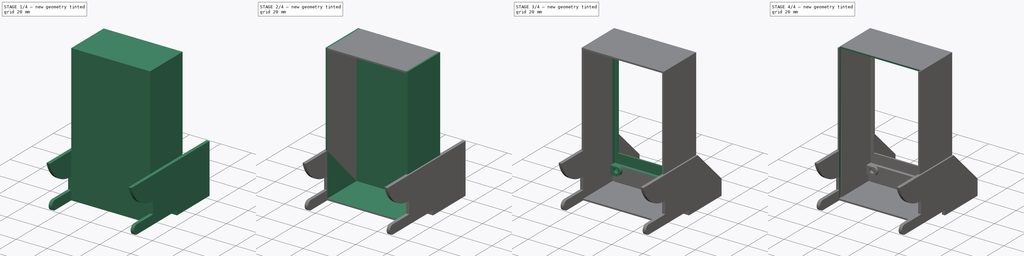
[diagram: build sequence overview — one tinted view per stage of 4, left to right]
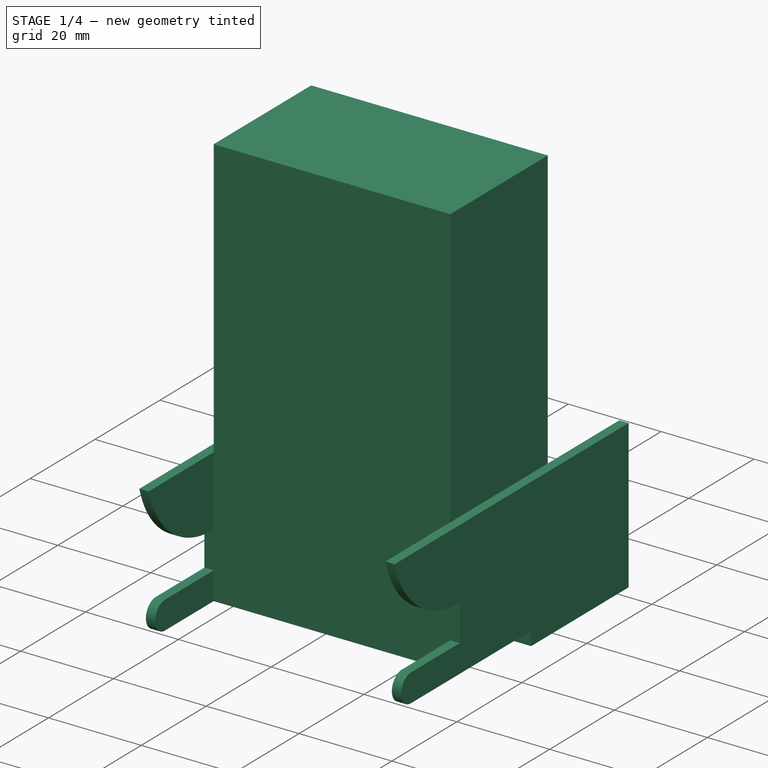
[diagram: stage 1 of 4 — iso view after this stage's code; geometry added in this stage tinted green]
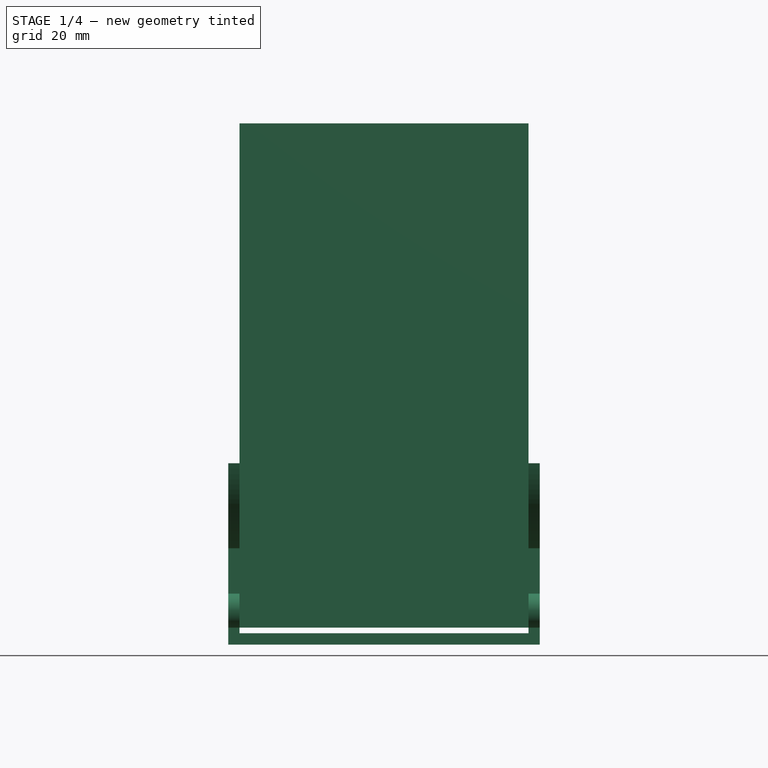
[diagram: stage 1 of 4 — front view after this stage's code; geometry added in this stage tinted green]
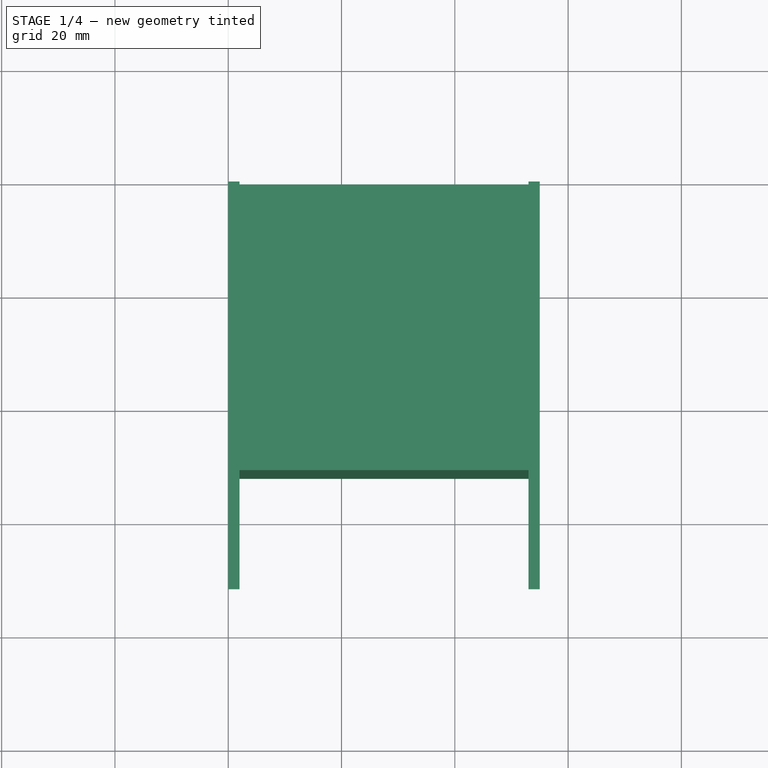
[diagram: stage 1 of 4 — top view after this stage's code; geometry added in this stage tinted green]
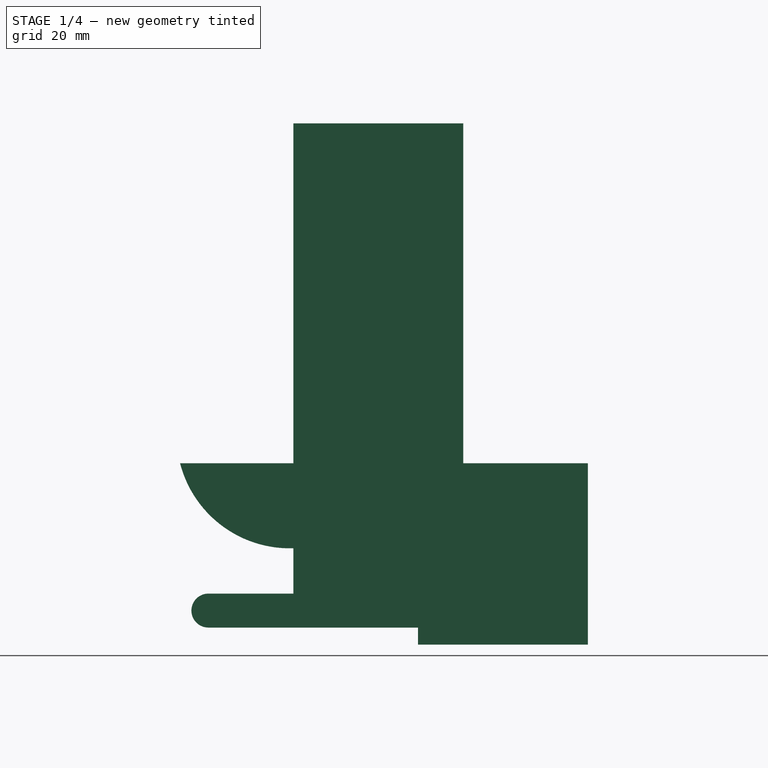
[diagram: stage 1 of 4 — right view after this stage's code; geometry added in this stage tinted green]
FCSTD DOCUMENT  (FreeCAD 0.19R)
Label: screen_case_top
License: All rights reserved
LicenseURL: http://en.wikipedia.org/wiki/All_rights_reserved
objects: Sketcher::SketchObject×10, PartDesign::Pocket×8, PartDesign::Pad×5, PartDesign::Body×1
note: 37 computed .brp shape members not serialized (recipe doc carries the construction recipe); baked Part::Feature solids carry a one-line shape summary decoded from their .brp

FEATURE [Sketcher::SketchObject] Sketch
  FullyConstrained = true
  MapMode = 5
  Placement = pos=(0,0,0) rot=(0.57735,0.57735,0.57735;2.0944rad)
  Support = -> [YZ_Plane]
  sketch-geometry (9):
    g0: LineSegment StartX=0 StartY=0 StartZ=0 EndX=-30 EndY=0 EndZ=0
    g1: LineSegment StartX=-30 StartY=0 StartZ=0 EndX=-30 EndY=3 EndZ=0
    g2: LineSegment StartX=-30 StartY=3 StartZ=0 EndX=-67 EndY=3 EndZ=0
    g3: LineSegment StartX=-67 StartY=9 StartZ=0 EndX=-52 EndY=9 EndZ=0
    g4: LineSegment StartX=-52 StartY=9 StartZ=0 EndX=-52 EndY=17 EndZ=0
    g5: LineSegment StartX=-72 StartY=32 StartZ=0 EndX=0 EndY=32 EndZ=0
    g6: LineSegment StartX=0 StartY=32 StartZ=0 EndX=0 EndY=0 EndZ=0
    g7: ArcOfCircle CenterX=-67 CenterY=6 CenterZ=0 NormalX=0 NormalY=0 NormalZ=1 AngleXU=0 Radius=3 StartAngle=1.5708 EndAngle=4.71239
    g8: ArcOfCircle CenterX=-52.625 CenterY=37 CenterZ=0 NormalX=0 NormalY=0 NormalZ=1 AngleXU=0 Radius=20.0098 StartAngle=3.39415 EndAngle=4.74363
  constraints (28):
    c: Coincident(g-1,g0)
    c: PointOnObject(g0,g-1)
    c: Coincident(g0,g1)
    c: Vertical(g1)
    c: Coincident(g1,g2)
    c: Horizontal(g2)
    c: Horizontal(g3)
    c: Coincident(g3,g4)
    c: Vertical(g4)
    c: PointOnObject(g5,g-2)
    c: Horizontal(g5)
    c: Coincident(g5,g6)
    c: Coincident(g6,g0)
    c: Coincident(g7,g2)
    c: Coincident(g7,g3)
    c: Coincident(g8,g5)
    c: DistanceX(g0,g0) = 30
    c: Diameter(g7) = 6
    c: DistanceY(g1,g1) = 3
    c: DistanceX(g2,g2) = 37
    c: DistanceX(g2,g7) = 0
    c: DistanceX(g3,g7) = 0
    c: DistanceX(g3,g0) = 52
    c: DistanceY(g4,g4) = 8
    c: DistanceY(g4,g5) = 15
    c: Coincident(g8,g4)
    c: DistanceX(g5,g4) = 20
    c: DistanceY(g4,g8) = 20
FEATURE [PartDesign::Pad] Pad
  Direction = (1,1,1)
  Length = 55
  Length2 = 100
  Placement = pos=(0,0,0) rot=(0.57735,0.57735,0.57735;2.0944rad)
  Profile = -> Sketch
  Type = 0
FEATURE [Sketcher::SketchObject] Sketch001
  FullyConstrained = true
  MapMode = 5
  Placement = pos=(-1.24e-14,1.78e-14,32) rot=(0,0,-1;1.5708rad)
  Support = -> [Pad]
  sketch-geometry (4):
    g0: LineSegment StartX=0 StartY=2 StartZ=0 EndX=72 EndY=2 EndZ=0
    g1: LineSegment StartX=72 StartY=2 StartZ=0 EndX=72 EndY=53 EndZ=0
    g2: LineSegment StartX=72 StartY=53 StartZ=0 EndX=0 EndY=53 EndZ=0
    g3: LineSegment StartX=0 StartY=53 StartZ=0 EndX=0 EndY=2 EndZ=0
  constraints (12):
    c: Coincident(g0,g1)
    c: Coincident(g1,g2)
    c: Coincident(g2,g3)
    c: Coincident(g3,g0)
    c: Horizontal(g0)
    c: Horizontal(g2)
    c: Vertical(g1)
    c: Vertical(g3)
    c: PointOnObject(g0,g-2)
    c: DistanceY(g3,g3) = 51
    c: DistanceY(g-1,g0) = 2
    c: DistanceX(g2,g2) = 72
FEATURE [PartDesign::Pocket] Pocket
  BaseFeature = -> Pad
  Length = 30
  Length2 = 100
  Placement = pos=(0,0,0) rot=(0.57735,0.57735,0.57735;2.0944rad)
  Profile = -> Sketch001
  Type = 0
FEATURE [Sketcher::SketchObject] Sketch002
  FullyConstrained = true
  MapMode = 5
  Placement = pos=(53,-1.18e-14,3.82e-14) rot=(0.57735,0.57735,-0.57735;4.18879rad)
  Support = -> [Pocket]
  sketch-geometry (4):
    g0: LineSegment StartX=-52 StartY=-3 StartZ=0 EndX=-22 EndY=-3 EndZ=0
    g1: LineSegment StartX=-22 StartY=-3 StartZ=0 EndX=-22 EndY=-92 EndZ=0
    g2: LineSegment StartX=-22 StartY=-92 StartZ=0 EndX=-52 EndY=-92 EndZ=0
    g3: LineSegment StartX=-52 StartY=-92 StartZ=0 EndX=-52 EndY=-3 EndZ=0
  constraints (12):
    c: Coincident(g0,g1)
    c: Coincident(g1,g2)
    c: Coincident(g2,g3)
    c: Coincident(g3,g0)
    c: Horizontal(g0)
    c: Horizontal(g2)
    c: Vertical(g1)
    c: Vertical(g3)
    c: DistanceY(g0,g-1) = 3
    c: DistanceX(g0,g-1) = 52
    c: DistanceX(g0,g0) = 30
    c: DistanceY(g3,g3) = 89
FEATURE [PartDesign::Pad] Pad001
  BaseFeature = -> Pocket
  Direction = (1,1,1)
  Length = 51
  Length2 = 100
  Placement = pos=(0,0,0) rot=(0.57735,0.57735,0.57735;2.0944rad)
  Profile = -> Sketch002
  Type = 0
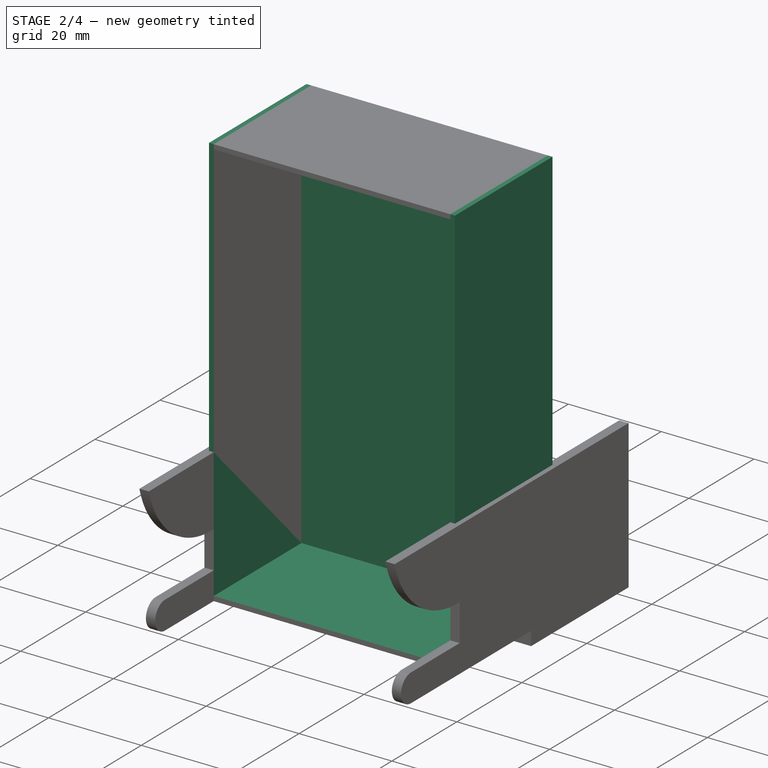
[diagram: stage 2 of 4 — iso view after this stage's code; geometry added in this stage tinted green]
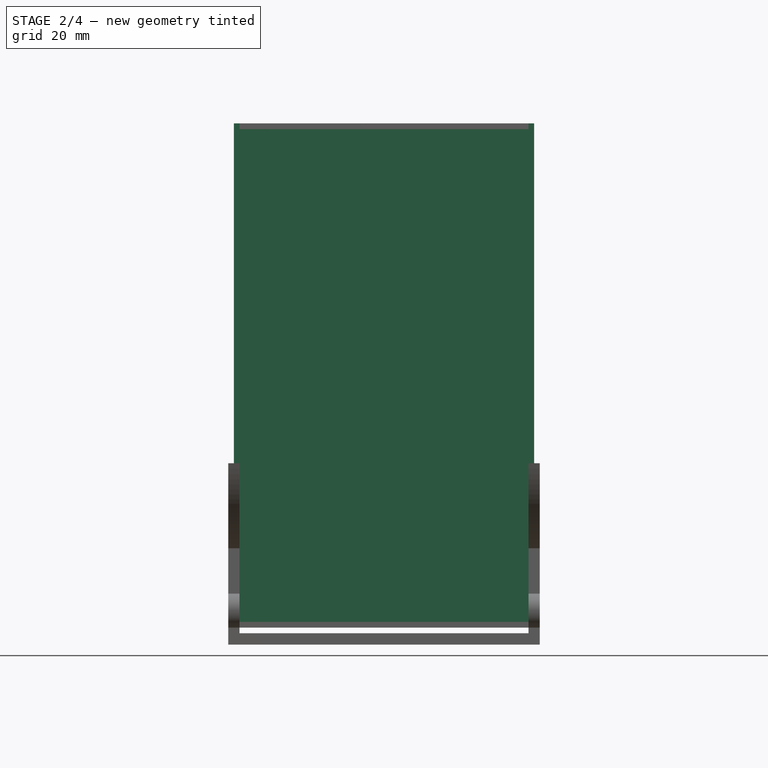
[diagram: stage 2 of 4 — front view after this stage's code; geometry added in this stage tinted green]
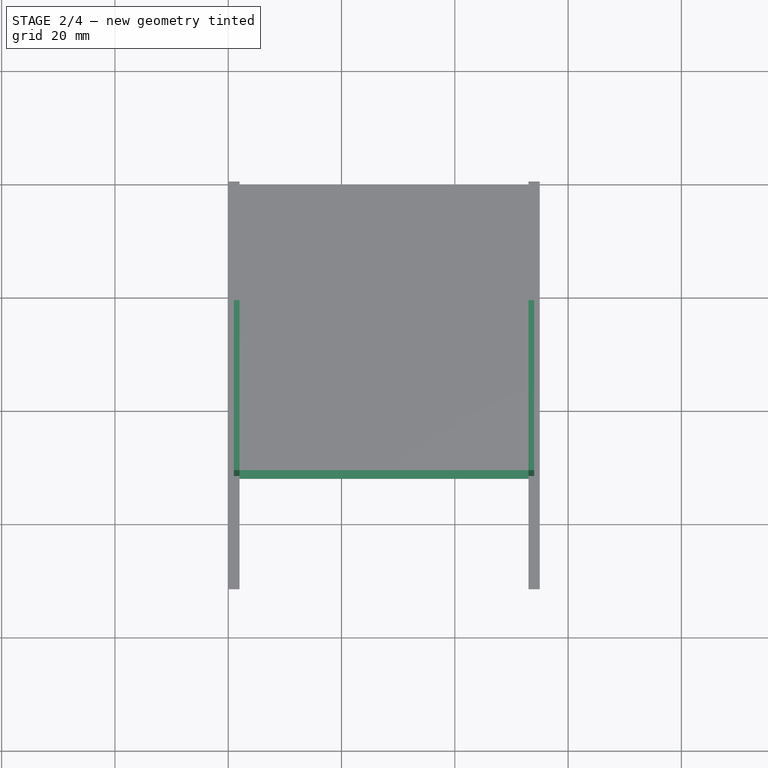
[diagram: stage 2 of 4 — top view after this stage's code; geometry added in this stage tinted green]
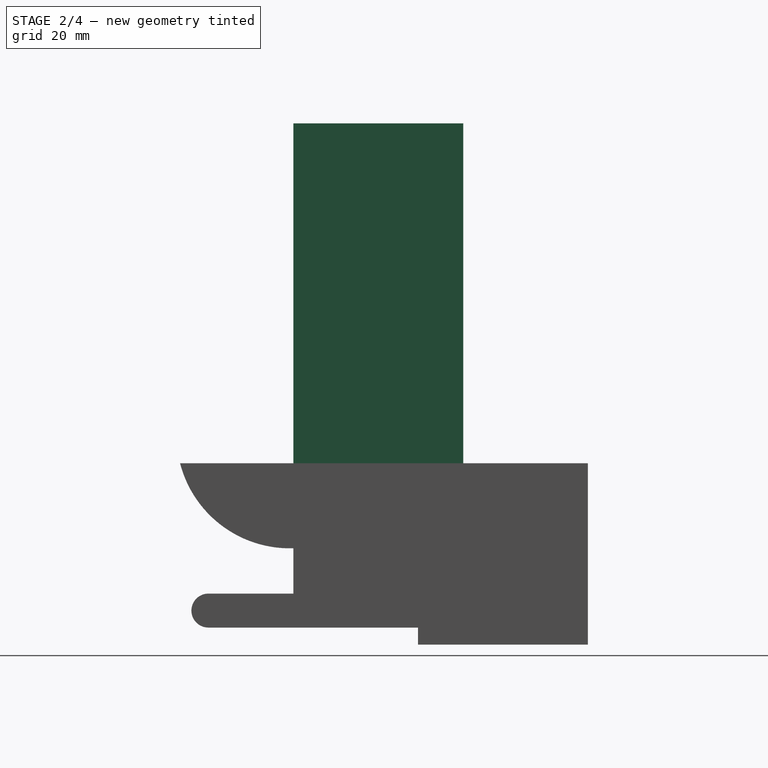
[diagram: stage 2 of 4 — right view after this stage's code; geometry added in this stage tinted green]
FEATURE [PartDesign::Pad] Pad002
  BaseFeature = -> Pad001
  Direction = (1,1,1)
  Length = 1
  Length2 = 100
  Placement = pos=(0,0,0) rot=(0.57735,0.57735,0.57735;2.0944rad)
  Profile = -> Pad001 [Face5]
  Type = 0
FEATURE [PartDesign::Pad] Pad003
  BaseFeature = -> Pad002
  Direction = (1,1,1)
  Length = 1
  Length2 = 100
  Placement = pos=(0,0,0) rot=(0.57735,0.57735,0.57735;2.0944rad)
  Profile = -> Pad002 [Face31]
  Type = 0
FEATURE [Sketcher::SketchObject] Sketch003
  FullyConstrained = true
  MapMode = 5
  Placement = pos=(-2.31e-14,-52,4.04e-14) rot=(0.57735,0.57735,-0.57735;2.0944rad)
  Support = -> [Pad003]
  sketch-geometry (4):
    g0: LineSegment StartX=-4 StartY=2 StartZ=0 EndX=-91 EndY=2 EndZ=0
    g1: LineSegment StartX=-91 StartY=2 StartZ=0 EndX=-91 EndY=53 EndZ=0
    g2: LineSegment StartX=-91 StartY=53 StartZ=0 EndX=-4 EndY=53 EndZ=0
    g3: LineSegment StartX=-4 StartY=53 StartZ=0 EndX=-4 EndY=2 EndZ=0
  constraints (12):
    c: Coincident(g0,g1)
    c: Coincident(g1,g2)
    c: Coincident(g2,g3)
    c: Coincident(g3,g0)
    c: Horizontal(g0)
    c: Horizontal(g2)
    c: Vertical(g1)
    c: Vertical(g3)
    c: DistanceY(g1,g1) = 51
    c: DistanceX(g2,g2) = 87
    c: DistanceY(g-1,g0) = 2
    c: DistanceX(g0,g-1) = 4
FEATURE [PartDesign::Pocket] Pocket001
  BaseFeature = -> Pad003
  Length = 27
  Length2 = 100
  Placement = pos=(0,0,0) rot=(0.57735,0.57735,0.57735;2.0944rad)
  Profile = -> Sketch003
  Type = 0
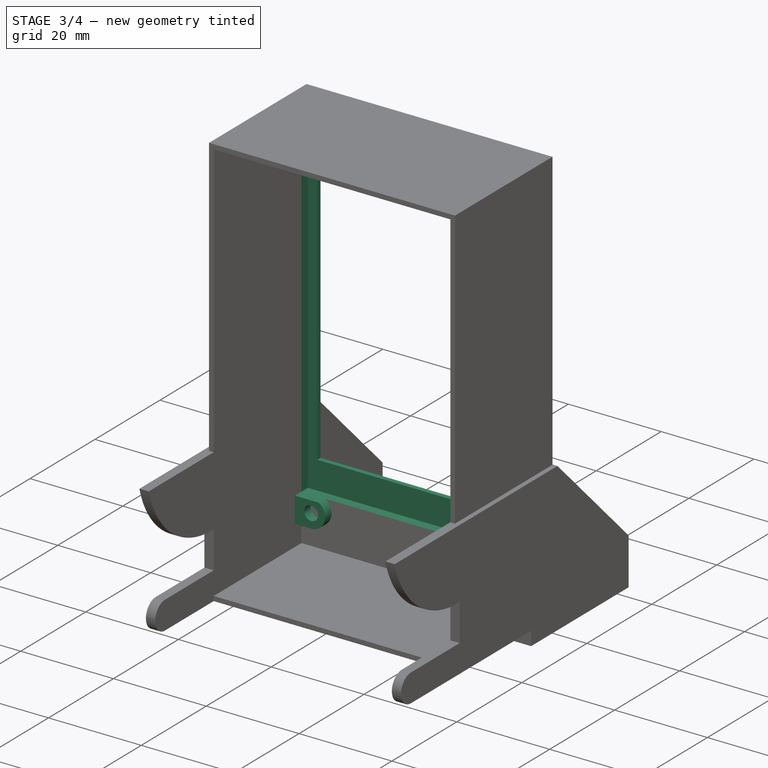
[diagram: stage 3 of 4 — iso view after this stage's code; geometry added in this stage tinted green]
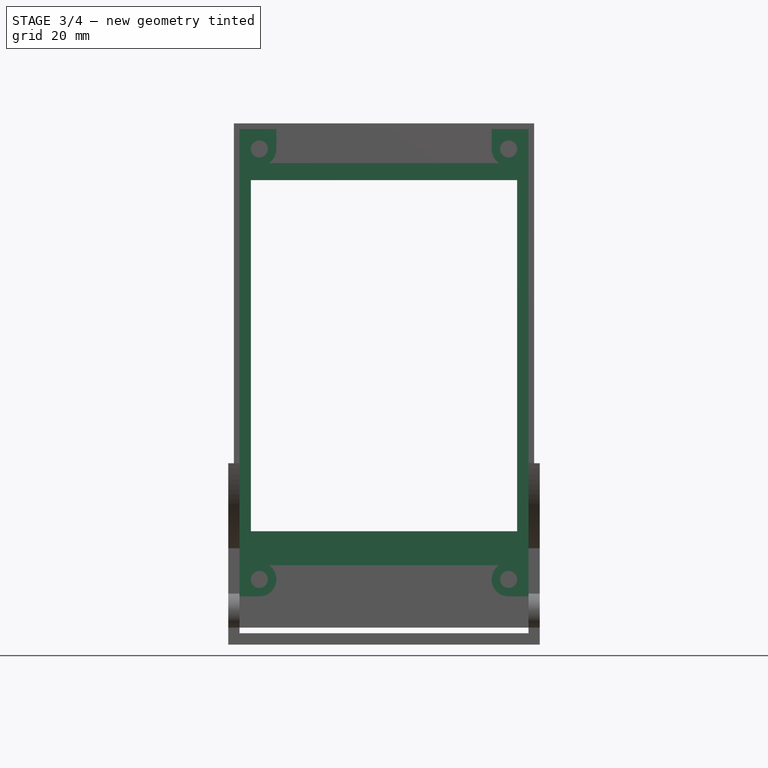
[diagram: stage 3 of 4 — front view after this stage's code; geometry added in this stage tinted green]
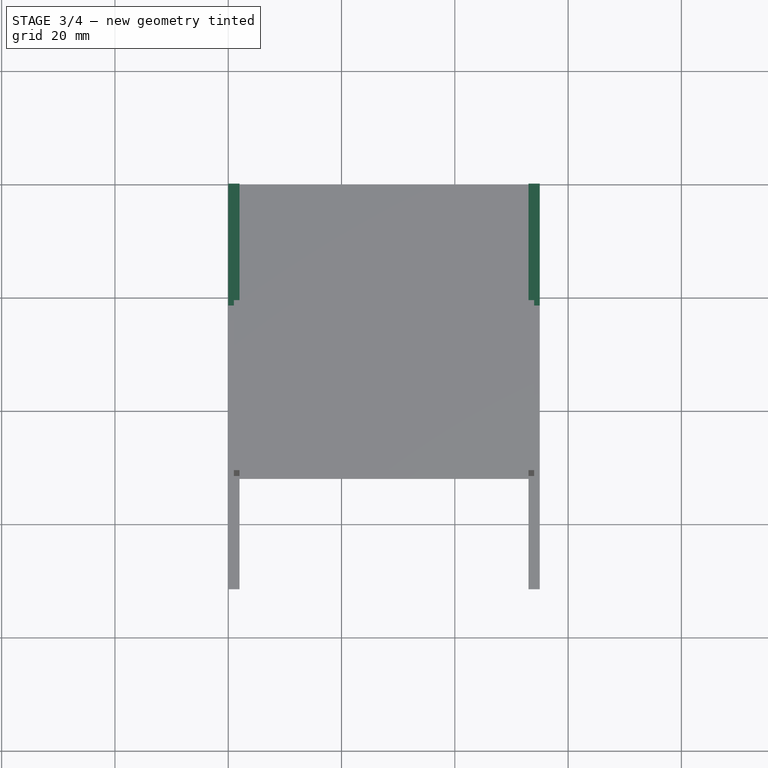
[diagram: stage 3 of 4 — top view after this stage's code; geometry added in this stage tinted green]
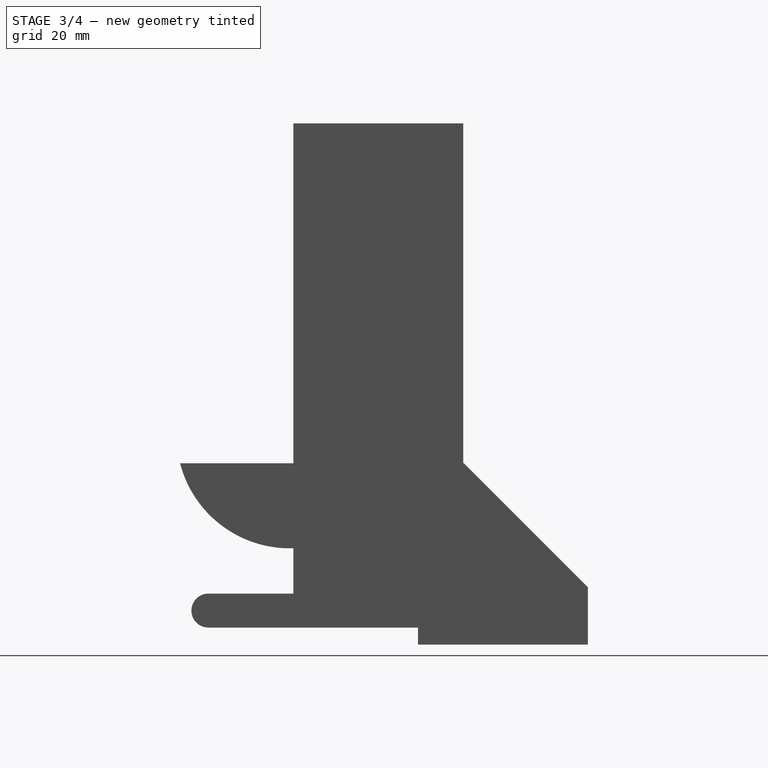
[diagram: stage 3 of 4 — right view after this stage's code; geometry added in this stage tinted green]
FEATURE [Sketcher::SketchObject] Sketch004
  FullyConstrained = true
  MapMode = 5
  Placement = pos=(-1.04e-14,-25,2.47e-14) rot=(0.57735,0.57735,-0.57735;2.0944rad)
  Support = -> [Pocket001]
  sketch-geometry (4):
    g0: LineSegment StartX=-14 StartY=2 StartZ=0 EndX=-85 EndY=2 EndZ=0
    g1: LineSegment StartX=-85 StartY=2 StartZ=0 EndX=-85 EndY=53 EndZ=0
    g2: LineSegment StartX=-85 StartY=53 StartZ=0 EndX=-14 EndY=53 EndZ=0
    g3: LineSegment StartX=-14 StartY=53 StartZ=0 EndX=-14 EndY=2 EndZ=0
  constraints (12):
    c: Coincident(g0,g1)
    c: Coincident(g1,g2)
    c: Coincident(g2,g3)
    c: Coincident(g3,g0)
    c: Horizontal(g0)
    c: Horizontal(g2)
    c: Vertical(g1)
    c: Vertical(g3)
    c: DistanceX(g2,g2) = 71
    c: DistanceY(g1,g1) = 51
    c: DistanceX(g0,g-1) = 14
    c: DistanceY(g-1,g0) = 2
FEATURE [PartDesign::Pocket] Pocket002
  BaseFeature = -> Pocket001
  Length = 2
  Length2 = 100
  Placement = pos=(0,0,0) rot=(0.57735,0.57735,0.57735;2.0944rad)
  Profile = -> Sketch004
  Type = 0
FEATURE [Sketcher::SketchObject] Sketch005
  FullyConstrained = true
  MapMode = 5
  Placement = pos=(-1.52e-14,-23,2.55e-14) rot=(0.57735,0.57735,-0.57735;2.0944rad)
  Support = -> [Pocket002]
  sketch-geometry (8):
    g0: LineSegment StartX=-14 StartY=2 StartZ=0 EndX=-85 EndY=2 EndZ=0
    g1: LineSegment StartX=-85 StartY=2 StartZ=0 EndX=-85 EndY=53 EndZ=0
    g2: LineSegment StartX=-85 StartY=53 StartZ=0 EndX=-14 EndY=53 EndZ=0
    g3: LineSegment StartX=-14 StartY=53 StartZ=0 EndX=-14 EndY=2 EndZ=0
    g4: LineSegment StartX=-82 StartY=4 StartZ=0 EndX=-20 EndY=4 EndZ=0
    g5: LineSegment StartX=-20 StartY=4 StartZ=0 EndX=-20 EndY=51 EndZ=0
    g6: LineSegment StartX=-20 StartY=51 StartZ=0 EndX=-82 EndY=51 EndZ=0
    g7: LineSegment StartX=-82 StartY=51 StartZ=0 EndX=-82 EndY=4 EndZ=0
  constraints (24):
    c: Coincident(g0,g1)
    c: Coincident(g1,g2)
    c: Coincident(g2,g3)
    c: Coincident(g3,g0)
    c: Horizontal(g0)
    c: Horizontal(g2)
    c: Vertical(g1)
    c: Vertical(g3)
    c: DistanceX(g0,g-1) = 14
    c: DistanceY(g-1,g0) = 2
    c: DistanceY(g3,g3) = 51
    c: DistanceX(g2,g2) = 71
    c: Coincident(g4,g5)
    c: Coincident(g5,g6)
    c: Coincident(g6,g7)
    c: Coincident(g7,g4)
    c: Horizontal(g4)
    c: Horizontal(g6)
    c: Vertical(g5)
    c: Vertical(g7)
    c: DistanceX(g4,g0) = 6
    c: DistanceY(g0,g4) = 2
    c: DistanceY(g5,g2) = 2
    c: DistanceX(g0,g4) = 3
FEATURE [PartDesign::Pocket] Pocket003
  BaseFeature = -> Pocket002
  Length = 1
  Length2 = 100
  Placement = pos=(0,0,0) rot=(0.57735,0.57735,0.57735;2.0944rad)
  Profile = -> Sketch005
  Type = 0
FEATURE [Sketcher::SketchObject] Sketch006
  FullyConstrained = true
  MapMode = 5
  Placement = pos=(-1.04e-14,-25,4.13e-14) rot=(0.57735,0.57735,-0.57735;2.0944rad)
  Support = -> [Pocket003]
  sketch-geometry (22):
    g0: Circle CenterX=-11.5 CenterY=5.5 CenterZ=0 NormalX=0 NormalY=0 NormalZ=1 AngleXU=0 Radius=1.5
    g1: Circle CenterX=-11.5 CenterY=49.5 CenterZ=0 NormalX=0 NormalY=0 NormalZ=1 AngleXU=0 Radius=1.5
    g2: Circle CenterX=-87.5 CenterY=5.5 CenterZ=0 NormalX=0 NormalY=0 NormalZ=1 AngleXU=0 Radius=1.5
    g3: Circle CenterX=-87.5 CenterY=49.5 CenterZ=0 NormalX=0 NormalY=0 NormalZ=1 AngleXU=0 Radius=1.5
    g4: LineSegment StartX=-8.5 StartY=2 StartZ=0 EndX=-14 EndY=2 EndZ=0
    g5: LineSegment StartX=-14 StartY=2 StartZ=0 EndX=-14 EndY=7.15831 EndZ=0
    g6: ArcOfCircle CenterX=-11.5 CenterY=5.5 CenterZ=0 NormalX=0 NormalY=0 NormalZ=1 AngleXU=0 Radius=3 StartAngle=1e-16 EndAngle=2.55591
    g7: LineSegment StartX=-14 StartY=47.8417 StartZ=0 EndX=-14 EndY=53 EndZ=0
    g8: LineSegment StartX=-14 StartY=53 StartZ=0 EndX=-8.5 EndY=53 EndZ=0
    g9: LineSegment StartX=-8.5 StartY=53 StartZ=0 EndX=-8.5 EndY=49.5 EndZ=0
    g10: ArcOfCircle CenterX=-11.5 CenterY=49.5 CenterZ=0 NormalX=0 NormalY=0 NormalZ=1 AngleXU=0 Radius=3 StartAngle=3.72728 EndAngle=6.28319
    g11: LineSegment StartX=-8.5 StartY=2 StartZ=0 EndX=-8.5 EndY=5.5 EndZ=0
    g12: LineSegment StartX=-85 StartY=7.15831 StartZ=0 EndX=-85 EndY=2 EndZ=0
    g13: LineSegment StartX=-85 StartY=2 StartZ=0 EndX=-91 EndY=2 EndZ=0
    g14: ArcOfCircle CenterX=-87.5 CenterY=5.5 CenterZ=0 NormalX=0 NormalY=0 NormalZ=1 AngleXU=0 Radius=3 StartAngle=0.585686 EndAngle=1.5708
    g15: LineSegment StartX=-91 StartY=2 StartZ=0 EndX=-91 EndY=8.5 EndZ=0
    g16: LineSegment StartX=-91 StartY=8.5 StartZ=0 EndX=-87.5 EndY=8.5 EndZ=0
    g17: LineSegment StartX=-85 StartY=47.8417 StartZ=0 EndX=-85 EndY=53 EndZ=0
    g18: LineSegment StartX=-85 StartY=53 StartZ=0 EndX=-91 EndY=53 EndZ=0
    g19: LineSegment StartX=-91 StartY=53 StartZ=0 EndX=-91 EndY=46.5 EndZ=0
    g20: LineSegment StartX=-91 StartY=46.5 StartZ=0 EndX=-87.5 EndY=46.5 EndZ=0
    g21: ArcOfCircle CenterX=-87.5 CenterY=49.5 CenterZ=0 NormalX=0 NormalY=0 NormalZ=1 AngleXU=0 Radius=3 StartAngle=4.71239 EndAngle=5.6975
  constraints (66):
    c: Diameter(g0) = 3
    c: DistanceX(g0,g-1) = 11.5
    c: DistanceY(g-1,g0) = 5.5
    c: Equal(g1,g0)
    c: Equal(g0,g3)
    c: Equal(g3,g2)
    c: DistanceY(g0,g1) = 44
    c: DistanceX(g0,g1) = 0
    c: DistanceY(g2,g0) = 0
    c: DistanceX(g3,g2) = 0
    c: DistanceY(g3,g1) = 0
    c: DistanceX(g2,g0) = 76
    c: Horizontal(g4)
    c: Coincident(g4,g5)
    c: Vertical(g5)
    c: Coincident(g6,g0)
    c: Coincident(g6,g5)
    c: Diameter(g6) = 6
    c: DistanceY(g-1,g4) = 2
    c: DistanceX(g4,g-1) = 14
    c: Vertical(g7)
    c: Coincident(g7,g8)
    c: Horizontal(g8)
    c: Coincident(g8,g9)
    c: Vertical(g9)
    c: Coincident(g10,g1)
    c: Coincident(g10,g7)
    c: Coincident(g10,g9)
    c: Equal(g5,g7)
    c: Equal(g6,g10)
    c: Equal(g8,g4)
    c: DistanceY(g4,g6) = 3.5
    c: Coincident(g11,g4)
    c: Coincident(g11,g6)
    c: Vertical(g11)
    c: Equal(g9,g11)
    c: Vertical(g12)
    c: Coincident(g12,g13)
    c: Horizontal(g13)
    c: Coincident(g14,g2)
    c: Coincident(g14,g12)
    c: Diameter(g14) = 6
    c: DistanceX(g12,g-1) = 85
    c: DistanceY(g-1,g12) = 2
    c: Coincident(g15,g13)
    c: Vertical(g15)
    c: Coincident(g16,g15)
    c: Coincident(g16,g14)
    c: Horizontal(g16)
    c: DistanceY(g15,g15) = 6.5
    c: DistanceX(g13,g13) = 6
    c: Vertical(g17)
    c: Coincident(g17,g18)
    c: Horizontal(g18)
    c: Coincident(g18,g19)
    c: Vertical(g19)
    c: Coincident(g19,g20)
    c: Horizontal(g20)
    c: Coincident(g21,g3)
    c: Coincident(g21,g20)
    c: Coincident(g21,g17)
    c: DistanceX(g12,g17) = 0
    c: DistanceY(g12,g17) = 51
    c: Equal(g18,g13)
    c: Equal(g19,g15)
    c: Equal(g20,g16)
FEATURE [PartDesign::Pad] Pad004
  BaseFeature = -> Pocket003
  Direction = (1,1,1)
  Length = 2
  Length2 = 100
  Placement = pos=(0,0,0) rot=(0.57735,0.57735,0.57735;2.0944rad)
  Profile = -> Sketch006
  Type = 0
FEATURE [Sketcher::SketchObject] Sketch007
  FullyConstrained = false
  MapMode = 5
  Placement = pos=(55,-1.221e-13,6.72e-14) rot=(0.57735,0.57735,0.57735;2.0944rad)
  Support = -> [Pad004]
  sketch-geometry (3):
    g0: LineSegment StartX=0.114911 StartY=10 StartZ=0 EndX=0.114911 EndY=32 EndZ=0
    g1: LineSegment StartX=0.114911 StartY=32 StartZ=0 EndX=-21.8851 EndY=32 EndZ=0
    g2: LineSegment StartX=-21.8851 StartY=32 StartZ=0 EndX=0.114911 EndY=10 EndZ=0
  constraints (8):
    c: Horizontal(g1)
    c: Coincident(g1,g2)
    c: DistanceX(g1,g1) = 22
    c: Coincident(g2,g0)
    c: Vertical(g0)
    c: Coincident(g0,g1)
    c: DistanceY(g-1,g0) = 32
    c: DistanceY(g0,g0) = 22
FEATURE [PartDesign::Pocket] Pocket004
  BaseFeature = -> Pad004
  Length = 5
  Length2 = 100
  Placement = pos=(0,0,0) rot=(0.57735,0.57735,0.57735;2.0944rad)
  Profile = -> Sketch007
  Type = 1
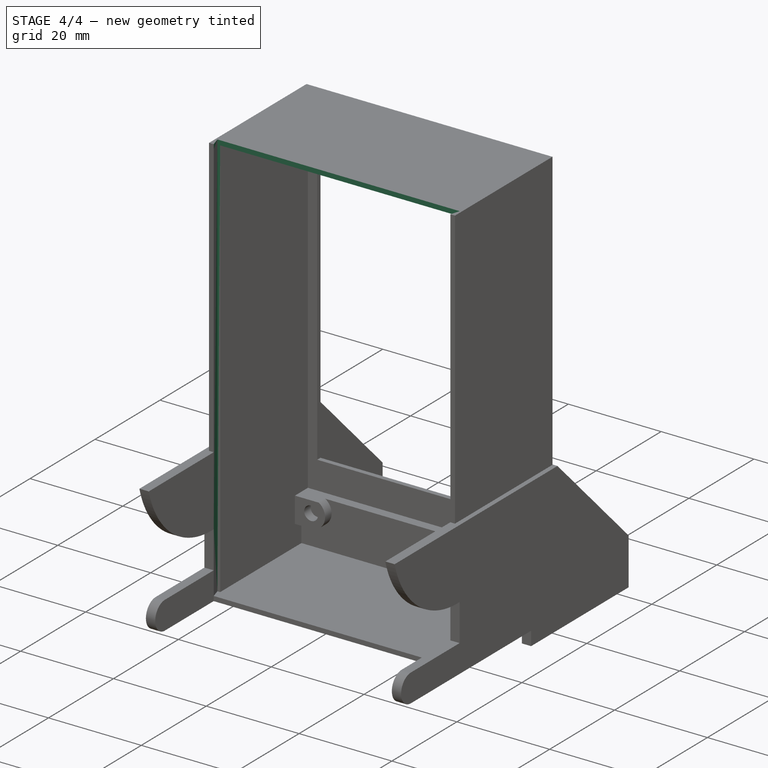
[diagram: stage 4 of 4 — iso view after this stage's code; geometry added in this stage tinted green]
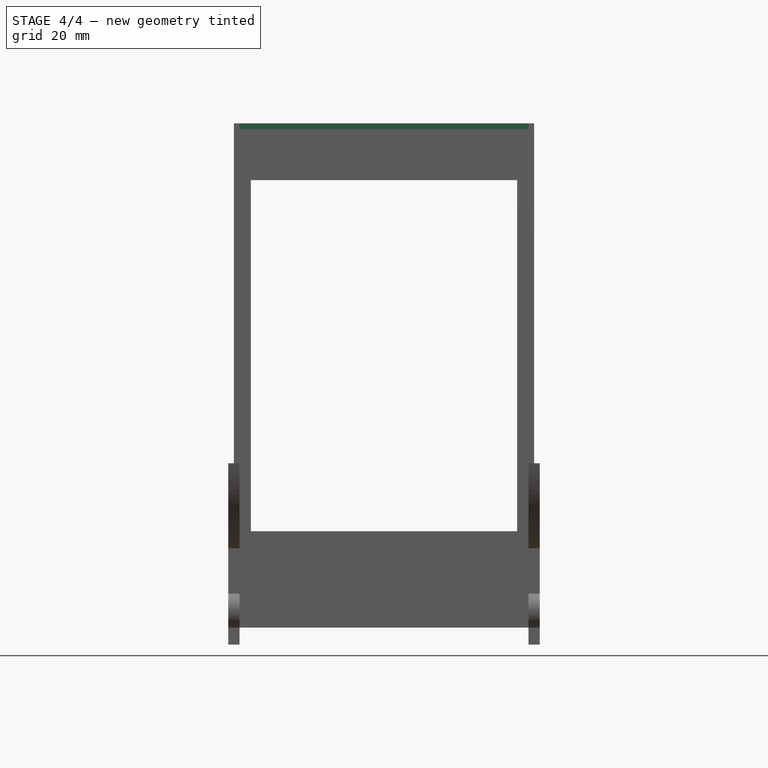
[diagram: stage 4 of 4 — front view after this stage's code; geometry added in this stage tinted green]
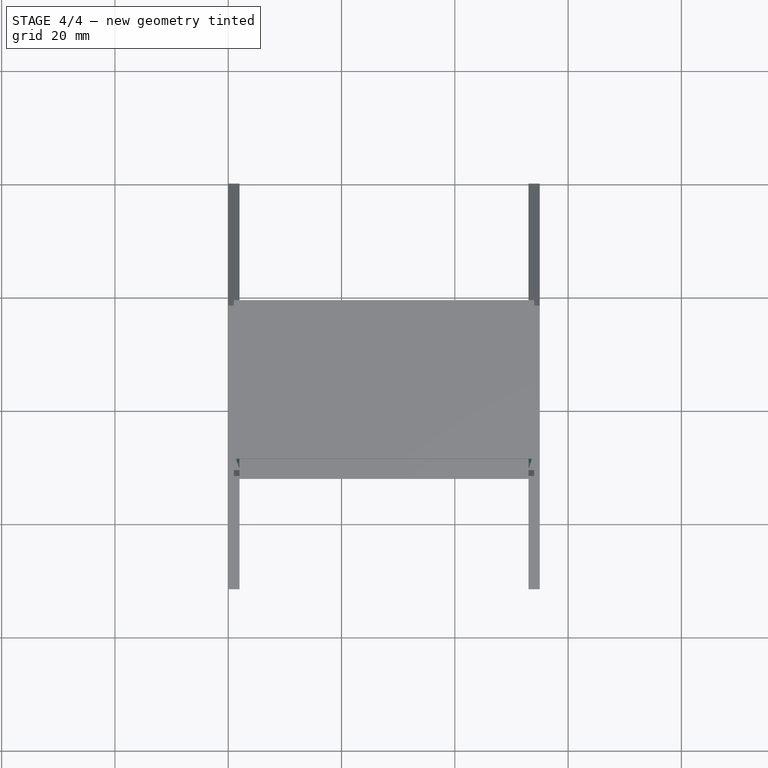
[diagram: stage 4 of 4 — top view after this stage's code; geometry added in this stage tinted green]
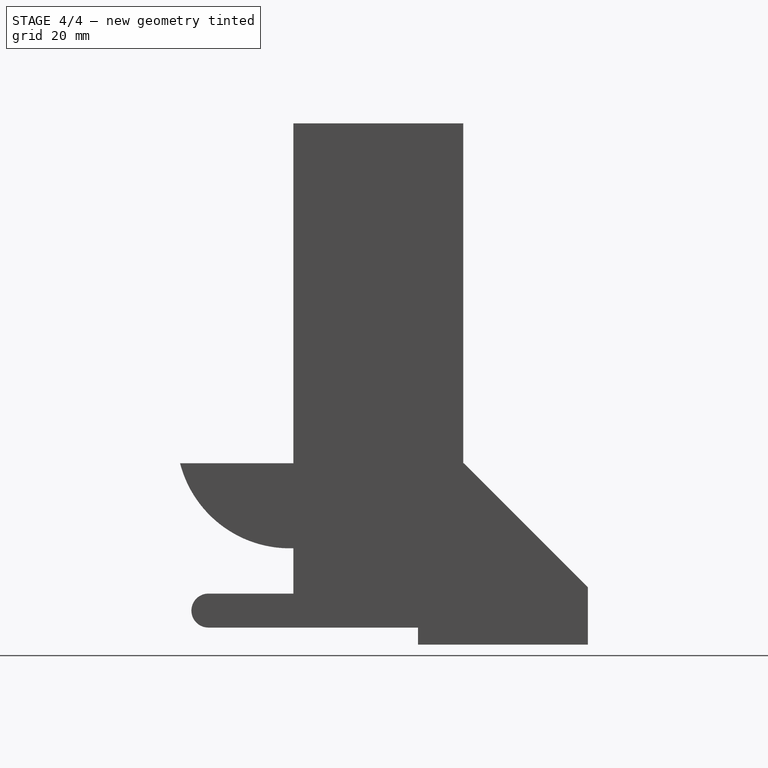
[diagram: stage 4 of 4 — right view after this stage's code; geometry added in this stage tinted green]
FEATURE [Sketcher::SketchObject] Sketch008
  FullyConstrained = true
  MapMode = 5
  Placement = pos=(0,0,0) rot=(0.707107,0.707107,0;3.14159rad)
  Support = -> [Pocket004]
  sketch-geometry (4):
    g0: LineSegment StartX=-30 StartY=2 StartZ=0 EndX=0 EndY=2 EndZ=0
    g1: LineSegment StartX=0 StartY=2 StartZ=0 EndX=0 EndY=53 EndZ=0
    g2: LineSegment StartX=0 StartY=53 StartZ=0 EndX=-30 EndY=53 EndZ=0
    g3: LineSegment StartX=-30 StartY=53 StartZ=0 EndX=-30 EndY=2 EndZ=0
  constraints (12):
    c: Coincident(g0,g1)
    c: Coincident(g1,g2)
    c: Coincident(g2,g3)
    c: Coincident(g3,g0)
    c: Horizontal(g0)
    c: Horizontal(g2)
    c: Vertical(g1)
    c: Vertical(g3)
    c: PointOnObject(g1,g-2)
    c: DistanceY(g-1,g0) = 2
    c: DistanceY(g1,g1) = 51
    c: DistanceX(g2,g2) = 30
FEATURE [PartDesign::Pocket] Pocket005
  BaseFeature = -> Pocket004
  Length = 5
  Length2 = 100
  Placement = pos=(0,0,0) rot=(0.57735,0.57735,0.57735;2.0944rad)
  Profile = -> Sketch008
  Type = 2
FEATURE [PartDesign::Pocket] Pocket006
  BaseFeature = -> Pocket005
  Length = 2
  Length2 = 100
  Placement = pos=(0,0,0) rot=(0.57735,0.57735,0.57735;2.0944rad)
  Profile = -> Pocket005 [Face21]
  Type = 0
FEATURE [Sketcher::SketchObject] Sketch009
  FullyConstrained = true
  MapMode = 5
  Placement = pos=(-3.448e-13,1.43e-13,92) rot=(0,0,-1;1.5708rad)
  Support = -> [Pocket006]
  sketch-geometry (6):
    g0: LineSegment StartX=52 StartY=53 StartZ=0 EndX=50 EndY=53 EndZ=0
    g1: LineSegment StartX=50 StartY=53 StartZ=0 EndX=50 EndY=53.6 EndZ=0
    g2: LineSegment StartX=50 StartY=53.6 StartZ=0 EndX=52 EndY=53 EndZ=0
    g3: LineSegment StartX=52 StartY=2 StartZ=0 EndX=50 EndY=2 EndZ=0
    g4: LineSegment StartX=50 StartY=2 StartZ=0 EndX=50 EndY=1.4 EndZ=0
    g5: LineSegment StartX=50 StartY=1.4 StartZ=0 EndX=52 EndY=2 EndZ=0
  constraints (18):
    c: Horizontal(g0)
    c: Coincident(g0,g1)
    c: Vertical(g1)
    c: Coincident(g1,g2)
    c: Coincident(g2,g0)
    c: Horizontal(g3)
    c: Coincident(g3,g4)
    c: Vertical(g4)
    c: Coincident(g4,g5)
    c: Coincident(g5,g3)
    c: DistanceY(g4,g4) = 0.6
    c: DistanceX(g3,g3) = 2
    c: DistanceY(g-1,g3) = 2
    c: DistanceX(g-1,g3) = 52
    c: DistanceX(g3,g0) = 0
    c: DistanceY(g3,g0) = 51
    c: Equal(g0,g3)
    c: Equal(g4,g1)
FEATURE [PartDesign::Pocket] Pocket007
  BaseFeature = -> Pocket006
  Length = 88
  Length2 = 100
  Placement = pos=(0,0,0) rot=(0.57735,0.57735,0.57735;2.0944rad)
  Profile = -> Sketch009
  Type = 0
FEATURE [PartDesign::Body] Body
  Group = -> [Sketch,Pad,Sketch001,Pocket,Sketch002,Pad001,Pad002,Pad003,Sketch003,Pocket001,Sketch004,Pocket002,Sketch005,Pocket003,Sketch006,Pad004,Sketch007,Pocket004,Sketch008,Pocket005,Pocket006,Sketch009,Pocket007]
  Origin = -> Origin
  Tip = -> Pocket007
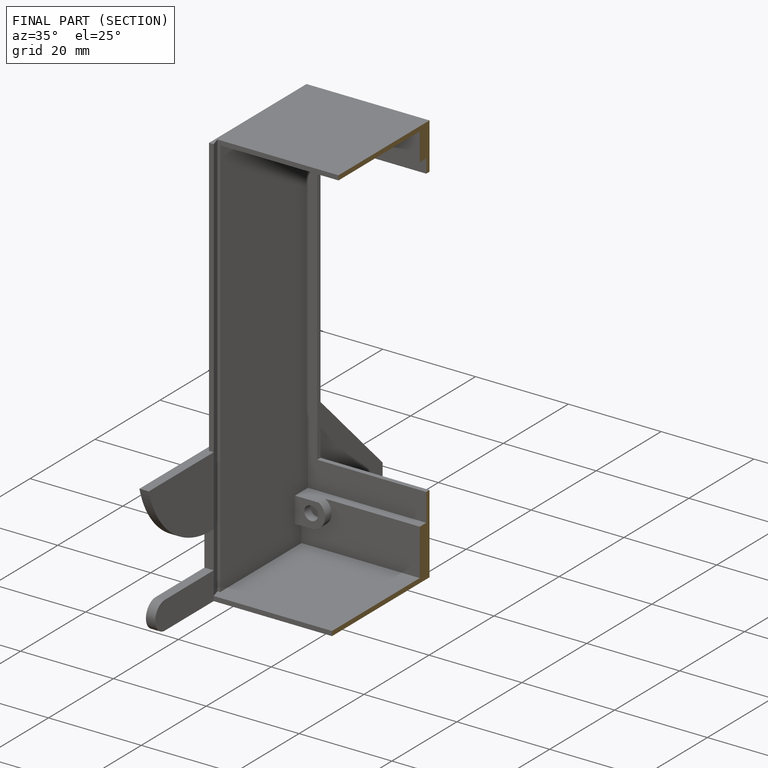
[diagram: finished part — half-section view (interior)]
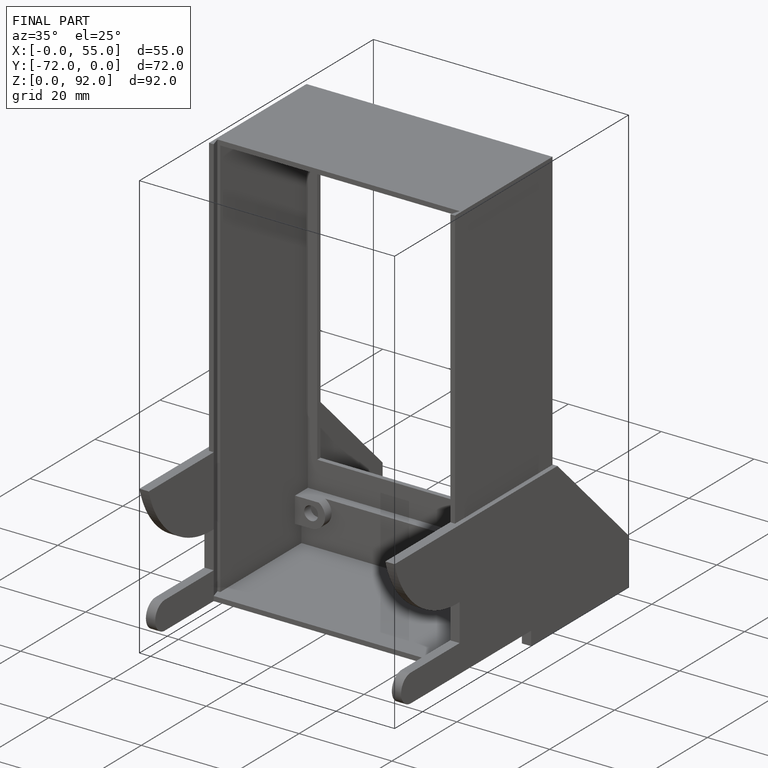
[diagram: finished part — iso view with bounding-box wireframe]
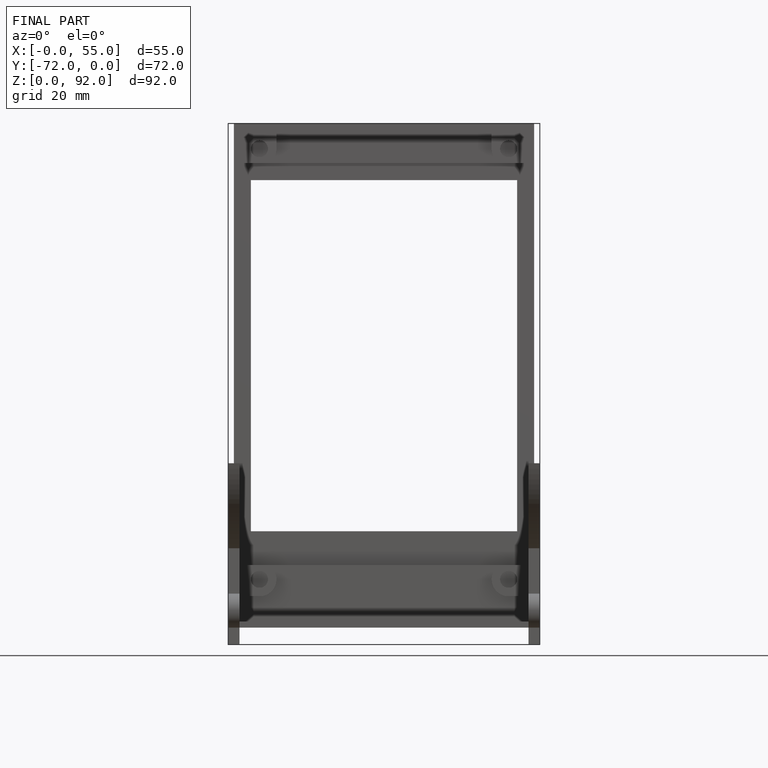
[diagram: finished part — front view with bounding-box wireframe]
